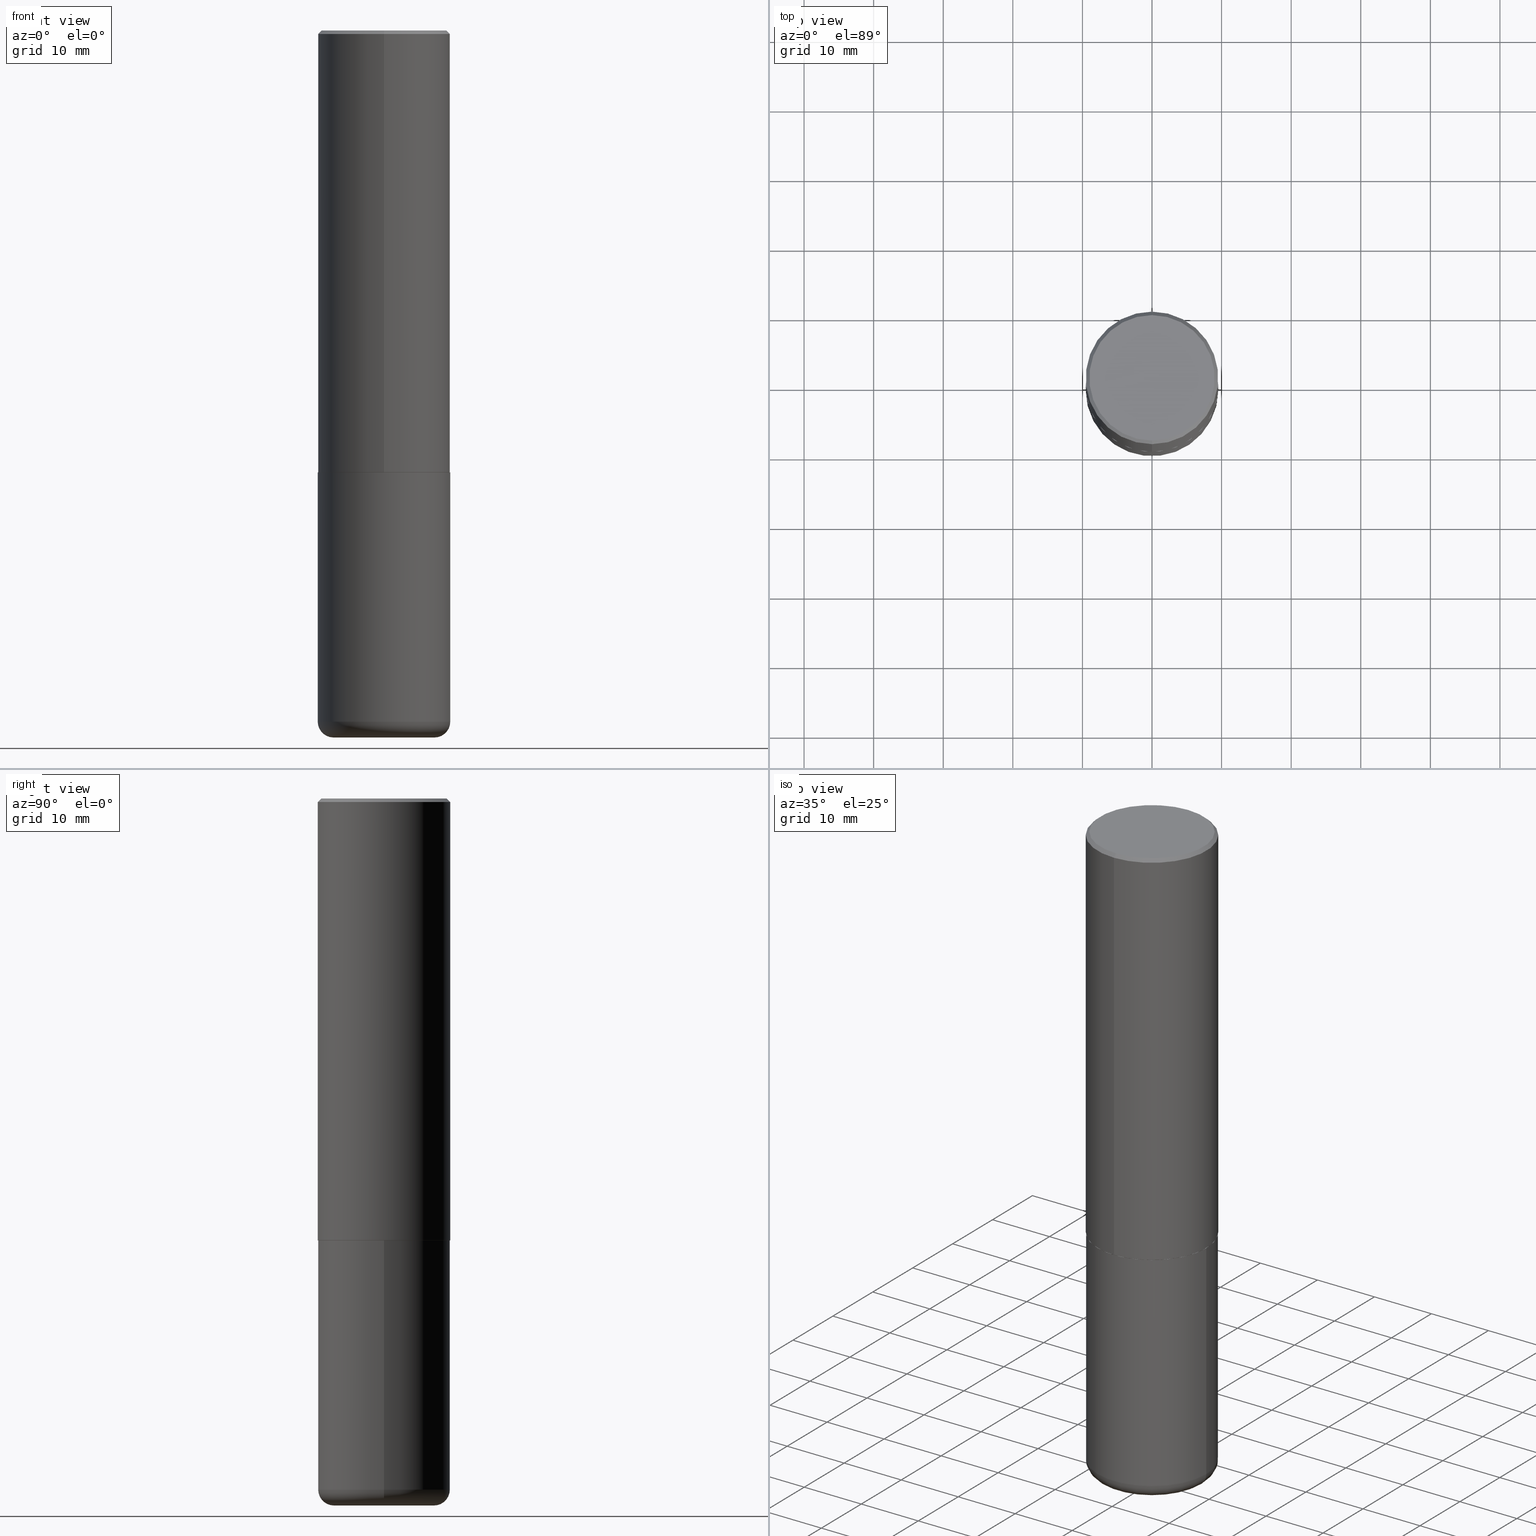
[diagram: canonical four-view strip — front | top / right | iso, engineering-drawing reading convention]
A machine part, canonical four-view strip (front | top / right | iso — engineering-drawing reading convention). The complete STEP part file that produces these views, byte-faithful:
ISO-10303-21;
HEADER;
FILE_DESCRIPTION (( 'STEP AP203' ),
    '1' );
FILE_NAME ('38297.STEP',
    '2024-03-02T21:24:46',
    ( '' ),
    ( '' ),
    'SwSTEP 2.0',
    'SolidWorks 2023',
    '' );
FILE_SCHEMA (( 'CONFIG_CONTROL_DESIGN' ));
ENDSEC;

DATA;
#1 = CARTESIAN_POINT ( 'NONE',  ( 0.000000000000000000, 0.000000000000000000, 0.000000000000000000 ) ) ;
#2 = EDGE_LOOP ( 'NONE', ( #383, #307, #387, #229 ) ) ;
#3 = CALENDAR_DATE ( 2024, 2, 3 ) ;
#4 = DIRECTION ( 'NONE',  ( -2.445468806185136597E-29, 3.491481338843145583E-15, 1.000000000000000000 ) ) ;
#5 = DATE_AND_TIME ( #3, #412 ) ;
#6 = VERTEX_POINT ( 'NONE', #354 ) ;
#7 = APPLICATION_PROTOCOL_DEFINITION ( 'international standard', 'config_control_design', 1994, #225 ) ;
#8 = DIRECTION ( 'NONE',  ( -2.445468806185136877E-29, 3.491481338843145188E-15, 1.000000000000000000 ) ) ;
#9 = LOCAL_TIME ( 16, 24, 46.00000000000000000, #37 ) ;
#10 = CARTESIAN_POINT ( 'NONE',  ( 2.657429831742835431E-15, 0.3739999999999912839, -2.500000000000001332 ) ) ;
#11 = CARTESIAN_POINT ( 'NONE',  ( 6.113672015462840371E-29, -8.728703347107863365E-15, -2.499999999999999556 ) ) ;
#12 = DIRECTION ( 'NONE',  ( -6.982962677686266711E-15, -1.000000000000000000, 2.913971193241878794E-15 ) ) ;
#13 = EDGE_CURVE ( 'NONE', #327, #174, #374, .T. ) ;
#14 = LOCAL_TIME ( 16, 24, 46.00000000000000000, #256 ) ;
#15 = DIRECTION ( 'NONE',  ( 2.444465131706344694E-29, -3.492918657822378868E-15, -1.000000000000000000 ) ) ;
#16 = ORIENTED_EDGE ( 'NONE', *, *, #323, .T. ) ;
#17 = CARTESIAN_POINT ( 'NONE',  ( 0.3749999999999999445, -2.618611004132349622E-15, 1.828566290923475642E-29 ) ) ;
#18 = CARTESIAN_POINT ( 'NONE',  ( 0.2850000000000000311, -1.595606971851316740E-14, -4.000000000000000000 ) ) ;
#19 = CONICAL_SURFACE ( 'NONE', #60, 0.3750000000000000555, 0.7853981633974477239 ) ;
#20 = LOCAL_TIME ( 16, 24, 46.00000000000000000, #386 ) ;
#21 = FACE_OUTER_BOUND ( 'NONE', #2, .T. ) ;
#22 = DIRECTION ( 'NONE',  ( -2.445468806185136597E-29, 3.491481338843145583E-15, 1.000000000000000000 ) ) ;
#23 = ORIENTED_EDGE ( 'NONE', *, *, #394, .F. ) ;
#24 = ADVANCED_FACE ( 'NONE', ( #355 ), #27, .T. ) ;
#25 = VERTEX_POINT ( 'NONE', #66 ) ;
#26 = DIRECTION ( 'NONE',  ( -6.982962677686266711E-15, -1.000000000000000000, 3.492918657822378473E-15 ) ) ;
#27 = CONICAL_SURFACE ( 'NONE', #310, 0.3739999999999999991, 0.7853981633974141952 ) ;
#28 = EDGE_LOOP ( 'NONE', ( #416, #149, #164, #342 ) ) ;
#29 = CC_DESIGN_APPROVAL ( #140, ( #49 ) ) ;
#30 = PERSON_AND_ORGANIZATION_ROLE ( 'design_owner' ) ;
#31 = CARTESIAN_POINT ( 'NONE',  ( 9.781875224740546387E-29, -1.396592535537258233E-14, -4.000000000000000000 ) ) ;
#32 = DIRECTION ( 'NONE',  ( -2.444465131706345255E-29, 3.492918657822378473E-15, 1.000000000000000000 ) ) ;
#33 = PERSON_AND_ORGANIZATION_ROLE ( 'design_supplier' ) ;
#34 = ORIENTED_EDGE ( 'NONE', *, *, #72, .T. ) ;
#35 = VECTOR ( 'NONE', #89, 39.37007874015748854 ) ;
#36 = AXIS2_PLACEMENT_3D ( 'NONE', #98, #159, #282 ) ;
#37 = COORDINATED_UNIVERSAL_TIME_OFFSET ( 5, 0, .BEHIND. ) ;
#38 = CARTESIAN_POINT ( 'NONE',  ( -2.504081769186608216E-15, -0.3549999999999999267, 1.308792571606178433E-15 ) ) ;
#39 = PERSON_AND_ORGANIZATION_ROLE ( 'classification_officer' ) ;
#40 = CARTESIAN_POINT ( 'NONE',  ( 6.108718364134156127E-29, -8.728803725898123939E-15, -2.498999999999999666 ) ) ;
#41 = DIRECTION ( 'NONE',  ( 1.000000000000000000, -6.982962677686273810E-15, 0.000000000000000000 ) ) ;
#42 = VECTOR ( 'NONE', #271, 39.37007874015748143 ) ;
#43 = CC_DESIGN_APPROVAL ( #215, ( #185 ) ) ;
#44 = DIRECTION ( 'NONE',  ( -6.982962677686266711E-15, -1.000000000000000000, 2.921762560068730595E-15 ) ) ;
#45 = EDGE_CURVE ( 'NONE', #379, #97, #109, .T. ) ;
#46 = DIRECTION ( 'NONE',  ( -6.982962677686266711E-15, -1.000000000000000000, 2.921762560068730595E-15 ) ) ;
#47 = CARTESIAN_POINT ( 'NONE',  ( 4.888930263412711914E-31, -6.985837315644786578E-17, -0.02000000000000008715 ) ) ;
#48 = VECTOR ( 'NONE', #359, 39.37007874015748143 ) ;
#49 = SECURITY_CLASSIFICATION ( '', '', #227 ) ;
#50 = DIRECTION ( 'NONE',  ( 6.982962677686265922E-15, 1.000000000000000000, -3.494488891895536035E-15 ) ) ;
#51 = CARTESIAN_POINT ( 'NONE',  ( 0.000000000000000000, 0.000000000000000000, 0.000000000000000000 ) ) ;
#52 = CYLINDRICAL_SURFACE ( 'NONE', #217, 0.3750000000000001665 ) ;
#53 = AXIS2_PLACEMENT_3D ( 'NONE', #1, #99, #188 ) ;
#54 = ORIENTED_EDGE ( 'NONE', *, *, #252, .T. ) ;
#55 = DIRECTION ( 'NONE',  ( -2.444465131706345255E-29, 3.492918657822378473E-15, 1.000000000000000000 ) ) ;
#56 = ORIENTED_EDGE ( 'NONE', *, *, #93, .T. ) ;
#57 = DIRECTION ( 'NONE',  ( 6.982962677686265922E-15, 1.000000000000000000, -3.494488891895536035E-15 ) ) ;
#58 = EDGE_LOOP ( 'NONE', ( #216, #117, #180, #318 ) ) ;
#59 = DATE_AND_TIME ( #163, #393 ) ;
#60 = AXIS2_PLACEMENT_3D ( 'NONE', #82, #176, #57 ) ;
#61 = ORIENTED_EDGE ( 'NONE', *, *, #148, .F. ) ;
#62 = APPROVAL_PERSON_ORGANIZATION ( #380, #140, #378 ) ;
#63 = APPROVAL_ROLE ( '' ) ;
#64 = EDGE_CURVE ( 'NONE', #223, #389, #395, .T. ) ;
#65 = DIRECTION ( 'NONE',  ( -6.982962677686266711E-15, -1.000000000000000000, 2.913971193241878794E-15 ) ) ;
#66 = CARTESIAN_POINT ( 'NONE',  ( -2.611628041454602471E-15, -0.3740000000000087699, -2.499999999999999112 ) ) ;
#67 = PERSON_AND_ORGANIZATION_ROLE ( 'creator' ) ;
#68 = FACE_OUTER_BOUND ( 'NONE', #92, .T. ) ;
#69 = AXIS2_PLACEMENT_3D ( 'NONE', #356, #108, #199 ) ;
#70 = APPROVAL_STATUS ( 'not_yet_approved' ) ;
#71 = CYLINDRICAL_SURFACE ( 'NONE', #365, 0.3749999999999999445 ) ;
#72 = EDGE_CURVE ( 'NONE', #139, #213, #211, .T. ) ;
#73 = CARTESIAN_POINT ( 'NONE',  ( 6.111162829265863557E-29, -8.732296644555947170E-15, -2.500000000000000000 ) ) ;
#74 = DIRECTION ( 'NONE',  ( -1.000000000000000000, 7.105427357600996337E-15, 0.000000000000000000 ) ) ;
#75 = AXIS2_PLACEMENT_3D ( 'NONE', #214, #277, #368 ) ;
#76 = FACE_OUTER_BOUND ( 'NONE', #360, .T. ) ;
#77 = DIRECTION ( 'NONE',  ( 6.982962677686265922E-15, 1.000000000000000000, -3.492918657822378868E-15 ) ) ;
#78 = EDGE_CURVE ( 'NONE', #97, #379, #330, .T. ) ;
#79 = CARTESIAN_POINT ( 'NONE',  ( 0.3750000000000000555, -1.134731435124021180E-14, -2.499999999999999556 ) ) ;
#80 = CC_DESIGN_PERSON_AND_ORGANIZATION_ASSIGNMENT ( #319, #39, ( #49 ) ) ;
#81 = AXIS2_PLACEMENT_3D ( 'NONE', #47, #295, #50 ) ;
#82 = CARTESIAN_POINT ( 'NONE',  ( 4.888930263412711914E-31, -6.985837315644786578E-17, -0.02000000000000008715 ) ) ;
#83 = CARTESIAN_POINT ( 'NONE',  ( 2.664535259100376486E-15, 0.3750000000000001665, -1.309844496683392470E-15 ) ) ;
#84 = ORIENTED_EDGE ( 'NONE', *, *, #87, .T. ) ;
#85 = CC_DESIGN_SECURITY_CLASSIFICATION ( #49, ( #185 ) ) ;
#86 = AXIS2_PLACEMENT_3D ( 'NONE', #31, #129, #259 ) ;
#87 = EDGE_CURVE ( 'NONE', #147, #309, #137, .T. ) ;
#88 = ORIENTED_EDGE ( 'NONE', *, *, #315, .F. ) ;
#89 = DIRECTION ( 'NONE',  ( -4.937700262164378437E-15, -0.7071067811865208164, 0.7071067811865739960 ) ) ;
#90 = ORIENTED_EDGE ( 'NONE', *, *, #243, .F. ) ;
#91 = CALENDAR_DATE ( 2024, 2, 3 ) ;
#92 = EDGE_LOOP ( 'NONE', ( #61, #284, #54, #88 ) ) ;
#93 = EDGE_CURVE ( 'NONE', #213, #139, #144, .T. ) ;
#94 = APPROVAL_STATUS ( 'not_yet_approved' ) ;
#95 = TOROIDAL_SURFACE ( 'NONE', #279, 0.2850000000000000311, 0.08999999999999989952 ) ;
#96 = ORIENTED_EDGE ( 'NONE', *, *, #72, .F. ) ;
#97 = VERTEX_POINT ( 'NONE', #231 ) ;
#98 = CARTESIAN_POINT ( 'NONE',  ( 4.888930263412711914E-31, -6.985837315644786578E-17, -0.02000000000000008715 ) ) ;
#99 = DIRECTION ( 'NONE',  ( 0.000000000000000000, 0.000000000000000000, 1.000000000000000000 ) ) ;
#100 = ORIENTED_EDGE ( 'NONE', *, *, #160, .T. ) ;
#101 = ADVANCED_FACE ( 'NONE', ( #68 ), #71, .T. ) ;
#102 = CARTESIAN_POINT ( 'NONE',  ( -1.681949631662511627E-45, 2.403353262744440834E-31, 6.880644807923424831E-17 ) ) ;
#103 = CARTESIAN_POINT ( 'NONE',  ( -0.2850000000000000311, -1.162664523796041410E-14, -3.910000000000000142 ) ) ;
#104 = PLANE ( 'NONE',  #69 ) ;
#105 = FACE_OUTER_BOUND ( 'NONE', #369, .T. ) ;
#106 = ORIENTED_EDGE ( 'NONE', *, *, #45, .F. ) ;
#107 = LINE ( 'NONE', #396, #48 ) ;
#108 = DIRECTION ( 'NONE',  ( -2.444465131706344694E-29, 3.492918657822378868E-15, 1.000000000000000000 ) ) ;
#109 = CIRCLE ( 'NONE', #414, 0.2850000000000000311 ) ;
#110 =( LENGTH_UNIT ( ) NAMED_UNIT ( * ) SI_UNIT ( $, .METRE. ) );
#111 = FACE_OUTER_BOUND ( 'NONE', #338, .T. ) ;
#112 = ADVANCED_FACE ( 'NONE', ( #125 ), #328, .T. ) ;
#113 = CARTESIAN_POINT ( 'NONE',  ( 9.781875224740546387E-29, -1.396592535537258233E-14, -4.000000000000000000 ) ) ;
#114 = ORIENTED_EDGE ( 'NONE', *, *, #276, .F. ) ;
#115 = CONICAL_SURFACE ( 'NONE', #81, 0.3750000000000000555, 0.7853981633974477239 ) ;
#116 = CYLINDRICAL_SURFACE ( 'NONE', #392, 0.3749999999999999445 ) ;
#117 = ORIENTED_EDGE ( 'NONE', *, *, #78, .T. ) ;
#118 = CARTESIAN_POINT ( 'NONE',  ( 0.000000000000000000, 0.000000000000000000, 0.000000000000000000 ) ) ;
#119 = MANIFOLD_SOLID_BREP ( 'Body-Move/Copy2[2]', #183 ) ;
#120 = PERSON_AND_ORGANIZATION ( #207, #303 ) ;
#121 = ORIENTED_EDGE ( 'NONE', *, *, #45, .T. ) ;
#122 = APPROVAL_DATE_TIME ( #190, #140 ) ;
#123 = DIRECTION ( 'NONE',  ( -6.982962677686266711E-15, -1.000000000000000000, 2.921762560068730595E-15 ) ) ;
#124 = PERSON_AND_ORGANIZATION_ROLE ( 'creator' ) ;
#125 = FACE_OUTER_BOUND ( 'NONE', #209, .T. ) ;
#126 = PRODUCT_RELATED_PRODUCT_CATEGORY ( 'detail', '', ( #221 ) ) ;
#127 = DIRECTION ( 'NONE',  ( -2.444465131706345255E-29, 3.492918657822378473E-15, 1.000000000000000000 ) ) ;
#128 = APPROVAL_DATE_TIME ( #161, #215 ) ;
#129 = DIRECTION ( 'NONE',  ( -2.445468806185136597E-29, 3.491481338843145583E-15, 1.000000000000000000 ) ) ;
#130 = AXIS2_PLACEMENT_3D ( 'NONE', #73, #32, #123 ) ;
#131 = LINE ( 'NONE', #17, #322 ) ;
#132 = CC_DESIGN_PERSON_AND_ORGANIZATION_ASSIGNMENT ( #120, #33, ( #185 ) ) ;
#133 = PLANE ( 'NONE',  #245 ) ;
#134 = DIRECTION ( 'NONE',  ( 1.000000000000000000, -6.982962677686264344E-15, 0.000000000000000000 ) ) ;
#135 = CIRCLE ( 'NONE', #382, 0.3739999999999999991 ) ;
#136 = EDGE_LOOP ( 'NONE', ( #275, #288 ) ) ;
#137 = CIRCLE ( 'NONE', #204, 0.3549999999999999267 ) ;
#138 = FACE_OUTER_BOUND ( 'NONE', #58, .T. ) ;
#139 = VERTEX_POINT ( 'NONE', #193 ) ;
#140 = APPROVAL ( #94, 'UNSPECIFIED' ) ;
#141 = CARTESIAN_POINT ( 'NONE',  ( 0.2850000000000000311, -1.564183639801728729E-14, -3.910000000000000142 ) ) ;
#142 = CARTESIAN_POINT ( 'NONE',  ( -2.611628041454602471E-15, -0.3740000000000087699, -2.499999999999999112 ) ) ;
#143 = CIRCLE ( 'NONE', #150, 0.08999999999999992728 ) ;
#144 = CIRCLE ( 'NONE', #187, 0.3750000000000000555 ) ;
#145 = CC_DESIGN_PERSON_AND_ORGANIZATION_ASSIGNMENT ( #186, #67, ( #300 ) ) ;
#146 = DIRECTION ( 'NONE',  ( 1.000000000000000000, -6.982962677686263555E-15, 0.000000000000000000 ) ) ;
#147 = VERTEX_POINT ( 'NONE', #38 ) ;
#148 = EDGE_CURVE ( 'NONE', #6, #389, #195, .T. ) ;
#149 = ORIENTED_EDGE ( 'NONE', *, *, #350, .T. ) ;
#150 = AXIS2_PLACEMENT_3D ( 'NONE', #141, #364, #41 ) ;
#151 = DIRECTION ( 'NONE',  ( -2.445468806185136597E-29, 3.491481338843145583E-15, 1.000000000000000000 ) ) ;
#152 = EDGE_CURVE ( 'NONE', #309, #139, #107, .T. ) ;
#153 = ORIENTED_EDGE ( 'NONE', *, *, #152, .T. ) ;
#154 = APPROVAL_DATE_TIME ( #5, #398 ) ;
#155 = DIRECTION ( 'NONE',  ( 1.000000000000000000, -6.982962677686264344E-15, 0.000000000000000000 ) ) ;
#156 = DIRECTION ( 'NONE',  ( -2.444465131706345255E-29, 3.492918657822378473E-15, 1.000000000000000000 ) ) ;
#157 = PERSON_AND_ORGANIZATION ( #207, #303 ) ;
#158 = AXIS2_PLACEMENT_3D ( 'NONE', #11, #234, #134 ) ;
#159 = DIRECTION ( 'NONE',  ( -2.444465131706345255E-29, 3.492918657822378473E-15, 1.000000000000000000 ) ) ;
#160 = EDGE_CURVE ( 'NONE', #174, #213, #391, .T. ) ;
#161 = DATE_AND_TIME ( #317, #20 ) ;
#162 = ORIENTED_EDGE ( 'NONE', *, *, #152, .F. ) ;
#163 = CALENDAR_DATE ( 2024, 2, 3 ) ;
#164 = ORIENTED_EDGE ( 'NONE', *, *, #93, .F. ) ;
#165 = ADVANCED_FACE ( 'NONE', ( #138 ), #95, .T. ) ;
#166 = VECTOR ( 'NONE', #203, 39.37007874015748143 ) ;
#167 = PLANE ( 'NONE',  #273 ) ;
#168 = AXIS2_PLACEMENT_3D ( 'NONE', #325, #329, #12 ) ;
#169 = LINE ( 'NONE', #326, #42 ) ;
#170 = CARTESIAN_POINT ( 'NONE',  ( -2.618611004132351200E-15, -0.3750000000000001665, 1.309844496683392470E-15 ) ) ;
#171 = ADVANCED_FACE ( 'NONE', ( #105 ), #133, .F. ) ;
#172 = CARTESIAN_POINT ( 'NONE',  ( 0.3749999999999999445, -1.627030303900904751E-14, -3.910000000000000142 ) ) ;
#173 = APPROVAL_PERSON_ORGANIZATION ( #353, #398, #348 ) ;
#174 = VERTEX_POINT ( 'NONE', #200 ) ;
#175 = CARTESIAN_POINT ( 'NONE',  ( 6.113672015462840371E-29, -8.728703347107863365E-15, -2.499999999999999556 ) ) ;
#176 = DIRECTION ( 'NONE',  ( 2.444465131706345255E-29, -3.492918657822378473E-15, -1.000000000000000000 ) ) ;
#177 = DIRECTION ( 'NONE',  ( -6.982962677686265922E-15, -1.000000000000000000, 3.492918657822378079E-15 ) ) ;
#178 = ORIENTED_EDGE ( 'NONE', *, *, #263, .T. ) ;
#179 = APPLICATION_CONTEXT ( 'configuration controlled 3d designs of mechanical parts and assemblies' ) ;
#180 = ORIENTED_EDGE ( 'NONE', *, *, #265, .T. ) ;
#181 = PRODUCT_DEFINITION_SHAPE ( 'NONE', 'NONE',  #300 ) ;
#182 = FACE_OUTER_BOUND ( 'NONE', #28, .T. ) ;
#183 = CLOSED_SHELL ( 'NONE', ( #112, #411, #222, #377, #333, #24, #230, #171 ) ) ;
#184 = CIRCLE ( 'NONE', #239, 0.3549999999999999267 ) ;
#185 = PRODUCT_DEFINITION_FORMATION_WITH_SPECIFIED_SOURCE ( 'ANY', '', #221, .NOT_KNOWN. ) ;
#186 = PERSON_AND_ORGANIZATION ( #207, #303 ) ;
#187 = AXIS2_PLACEMENT_3D ( 'NONE', #381, #349, #220 ) ;
#188 = DIRECTION ( 'NONE',  ( 1.000000000000000000, 0.000000000000000000, 0.000000000000000000 ) ) ;
#189 = DIRECTION ( 'NONE',  ( 1.000000000000000000, -6.982962677686266711E-15, 4.876176775795935793E-29 ) ) ;
#190 = DATE_AND_TIME ( #91, #14 ) ;
#191 = DIRECTION ( 'NONE',  ( -2.445468806185136597E-29, 3.491481338843145583E-15, 1.000000000000000000 ) ) ;
#192 = PERSON_AND_ORGANIZATION ( #207, #303 ) ;
#193 = CARTESIAN_POINT ( 'NONE',  ( 2.618611004132350411E-15, 0.3749999999999999445, -0.02000000000000139513 ) ) ;
#194 = PERSON_AND_ORGANIZATION ( #207, #303 ) ;
#195 = LINE ( 'NONE', #261, #293 ) ;
#196 = DIRECTION ( 'NONE',  ( -2.444465131706345255E-29, 3.492918657822378473E-15, 1.000000000000000000 ) ) ;
#197 = AXIS2_PLACEMENT_3D ( 'NONE', #415, #22, #370 ) ;
#198 = CARTESIAN_POINT ( 'NONE',  ( 6.111162829265863557E-29, -8.732296644555947170E-15, -2.500000000000000000 ) ) ;
#199 = DIRECTION ( 'NONE',  ( -6.982962677686265922E-15, -1.000000000000000000, 3.492918657822378868E-15 ) ) ;
#200 = CARTESIAN_POINT ( 'NONE',  ( -2.618611004132290852E-15, -0.3750000000000090483, -2.498999999999998778 ) ) ;
#201 = CC_DESIGN_DATE_AND_TIME_ASSIGNMENT ( #59, #286, ( #49 ) ) ;
#202 = ORIENTED_EDGE ( 'NONE', *, *, #362, .F. ) ;
#203 = DIRECTION ( 'NONE',  ( -2.444465131706345255E-29, 3.492918657822378868E-15, 1.000000000000000000 ) ) ;
#204 = AXIS2_PLACEMENT_3D ( 'NONE', #102, #418, #287 ) ;
#205 = PLANE ( 'NONE',  #210 ) ;
#206 = EDGE_CURVE ( 'NONE', #147, #213, #169, .T. ) ;
#207 = PERSON ( 'UNSPECIFIED', 'UNSPECIFIED', 'UNSPECIFIED', ('UNSPECIFIED'), ('UNSPECIFIED'), ('UNSPECIFIED') ) ;
#208 =( CONVERSION_BASED_UNIT ( 'INCH', #308 ) LENGTH_UNIT ( ) NAMED_UNIT ( #408 ) );
#209 = EDGE_LOOP ( 'NONE', ( #178, #409, #90, #23 ) ) ;
#210 = AXIS2_PLACEMENT_3D ( 'NONE', #113, #337, #274 ) ;
#211 = CIRCLE ( 'NONE', #36, 0.3750000000000000555 ) ;
#212 = FACE_OUTER_BOUND ( 'NONE', #244, .T. ) ;
#213 = VERTEX_POINT ( 'NONE', #399 ) ;
#214 = CARTESIAN_POINT ( 'NONE',  ( 9.561783032183883600E-29, -1.365169203487670064E-14, -3.910000000000000142 ) ) ;
#215 = APPROVAL ( #218, 'UNSPECIFIED' ) ;
#216 = ORIENTED_EDGE ( 'NONE', *, *, #296, .F. ) ;
#217 = AXIS2_PLACEMENT_3D ( 'NONE', #51, #410, #26 ) ;
#218 = APPROVAL_STATUS ( 'not_yet_approved' ) ;
#219 = CLOSED_SHELL ( 'NONE', ( #372, #335, #240, #101, #165, #384 ) ) ;
#220 = DIRECTION ( 'NONE',  ( -6.982962677686265922E-15, -1.000000000000000000, 3.494488891895536035E-15 ) ) ;
#221 = PRODUCT ( '38297', '38297', '', ( #258 ) ) ;
#222 = ADVANCED_FACE ( 'NONE', ( #76 ), #115, .T. ) ;
#223 = VERTEX_POINT ( 'NONE', #79 ) ;
#224 = VERTEX_POINT ( 'NONE', #172 ) ;
#225 = APPLICATION_CONTEXT ( 'configuration controlled 3d designs of mechanical parts and assemblies' ) ;
#226 = ADVANCED_BREP_SHAPE_REPRESENTATION ( '38297', ( #400, #119, #53 ), #253 ) ;
#227 = SECURITY_CLASSIFICATION_LEVEL ( 'unclassified' ) ;
#228 = CC_DESIGN_APPROVAL ( #398, ( #300 ) ) ;
#229 = ORIENTED_EDGE ( 'NONE', *, *, #252, .F. ) ;
#230 = ADVANCED_FACE ( 'NONE', ( #361 ), #104, .F. ) ;
#231 = CARTESIAN_POINT ( 'NONE',  ( -0.2850000000000000311, -1.146401766711631116E-14, -4.000000000000000000 ) ) ;
#232 = DIRECTION ( 'NONE',  ( 7.105427357601001859E-15, 1.000000000000000000, -3.491481338843145583E-15 ) ) ;
#233 = AXIS2_PLACEMENT_3D ( 'NONE', #238, #196, #46 ) ;
#234 = DIRECTION ( 'NONE',  ( -2.445468806185136597E-29, 3.491481338843145583E-15, 1.000000000000000000 ) ) ;
#235 = DIRECTION ( 'NONE',  ( -2.445468806185136597E-29, 3.491481338843145583E-15, 1.000000000000000000 ) ) ;
#236 = ORIENTED_EDGE ( 'NONE', *, *, #350, .F. ) ;
#237 = CARTESIAN_POINT ( 'NONE',  ( 2.478951750578623815E-15, 0.3549999999999999267, -1.205582899487326820E-15 ) ) ;
#238 = CARTESIAN_POINT ( 'NONE',  ( 6.111162829265863557E-29, -8.732296644555947170E-15, -2.500000000000000000 ) ) ;
#239 = AXIS2_PLACEMENT_3D ( 'NONE', #358, #332, #177 ) ;
#240 = ADVANCED_FACE ( 'NONE', ( #298 ), #167, .F. ) ;
#241 = ORIENTED_EDGE ( 'NONE', *, *, #13, .T. ) ;
#242 = CARTESIAN_POINT ( 'NONE',  ( 0.000000000000000000, 0.000000000000000000, 0.000000000000000000 ) ) ;
#243 = EDGE_CURVE ( 'NONE', #174, #327, #357, .T. ) ;
#244 = EDGE_LOOP ( 'NONE', ( #106, #340 ) ) ;
#245 = AXIS2_PLACEMENT_3D ( 'NONE', #237, #15, #77 ) ;
#246 = CARTESIAN_POINT ( 'NONE',  ( 2.664535259100408040E-15, 0.3749999999999915623, -2.499000000000000998 ) ) ;
#247 = EDGE_LOOP ( 'NONE', ( #257, #278 ) ) ;
#248 = FACE_OUTER_BOUND ( 'NONE', #413, .T. ) ;
#249 = VERTEX_POINT ( 'NONE', #301 ) ;
#250 = COORDINATED_UNIVERSAL_TIME_OFFSET ( 5, 0, .BEHIND. ) ;
#251 = CARTESIAN_POINT ( 'NONE',  ( 6.111162829265863557E-29, -8.732296644555947170E-15, -2.500000000000000000 ) ) ;
#252 = EDGE_CURVE ( 'NONE', #224, #223, #131, .T. ) ;
#253 =( GEOMETRIC_REPRESENTATION_CONTEXT ( 3 ) GLOBAL_UNCERTAINTY_ASSIGNED_CONTEXT ( ( #406 ) ) GLOBAL_UNIT_ASSIGNED_CONTEXT ( ( #208, #334, #304 ) ) REPRESENTATION_CONTEXT ( 'NONE', 'WORKASPACE' ) );
#254 = APPLICATION_PROTOCOL_DEFINITION ( 'international standard', 'config_control_design', 1994, #179 ) ;
#255 = ORIENTED_EDGE ( 'NONE', *, *, #323, .F. ) ;
#256 = COORDINATED_UNIVERSAL_TIME_OFFSET ( 5, 0, .BEHIND. ) ;
#257 = ORIENTED_EDGE ( 'NONE', *, *, #64, .T. ) ;
#258 = MECHANICAL_CONTEXT ( 'NONE', #179, 'mechanical' ) ;
#259 = DIRECTION ( 'NONE',  ( 1.000000000000000000, -6.982962677686266711E-15, 0.000000000000000000 ) ) ;
#260 = CIRCLE ( 'NONE', #197, 0.3749999999999999445 ) ;
#261 = CARTESIAN_POINT ( 'NONE',  ( -0.3749999999999999445, 2.664535259100375303E-15, -1.844600658845589318E-29 ) ) ;
#262 = DIRECTION ( 'NONE',  ( 5.024295867787889629E-15, 0.7071067811865257013, 0.7071067811865691111 ) ) ;
#263 = EDGE_CURVE ( 'NONE', #25, #249, #402, .T. ) ;
#264 = CARTESIAN_POINT ( 'NONE',  ( 2.548781377355487113E-15, 0.3549999999999999267, -1.171179675447709813E-15 ) ) ;
#265 = EDGE_CURVE ( 'NONE', #379, #224, #143, .T. ) ;
#266 = VECTOR ( 'NONE', #366, 39.37007874015748143 ) ;
#267 = CARTESIAN_POINT ( 'NONE',  ( 9.561783032183883600E-29, -1.365169203487670064E-14, -3.910000000000000142 ) ) ;
#268 = ORIENTED_EDGE ( 'NONE', *, *, #394, .T. ) ;
#269 = DIRECTION ( 'NONE',  ( 1.000000000000000000, -6.982962677686263555E-15, 4.883557194083111219E-29 ) ) ;
#270 = ORIENTED_EDGE ( 'NONE', *, *, #13, .F. ) ;
#271 = DIRECTION ( 'NONE',  ( -4.851104656540961119E-15, -0.7071067811865495711, -0.7071067811865454633 ) ) ;
#272 = CARTESIAN_POINT ( 'NONE',  ( 9.561783032183883600E-29, -1.365169203487670064E-14, -3.910000000000000142 ) ) ;
#273 = AXIS2_PLACEMENT_3D ( 'NONE', #175, #390, #401 ) ;
#274 = DIRECTION ( 'NONE',  ( -1.000000000000000000, 6.982962677686265922E-15, -4.876176775795935793E-29 ) ) ;
#275 = ORIENTED_EDGE ( 'NONE', *, *, #263, .F. ) ;
#276 = EDGE_CURVE ( 'NONE', #249, #327, #292, .T. ) ;
#277 = DIRECTION ( 'NONE',  ( -2.445468806185136597E-29, 3.491481338843145583E-15, 1.000000000000000000 ) ) ;
#278 = ORIENTED_EDGE ( 'NONE', *, *, #315, .T. ) ;
#279 = AXIS2_PLACEMENT_3D ( 'NONE', #267, #235, #269 ) ;
#280 = FACE_OUTER_BOUND ( 'NONE', #320, .T. ) ;
#281 = CALENDAR_DATE ( 2024, 2, 3 ) ;
#282 = DIRECTION ( 'NONE',  ( -6.982962677686265922E-15, -1.000000000000000000, 3.494488891895536035E-15 ) ) ;
#283 = CC_DESIGN_DATE_AND_TIME_ASSIGNMENT ( #417, #313, ( #300 ) ) ;
#284 = ORIENTED_EDGE ( 'NONE', *, *, #367, .T. ) ;
#285 = CIRCLE ( 'NONE', #158, 0.3750000000000000555 ) ;
#286 = DATE_TIME_ROLE ( 'classification_date' ) ;
#287 = DIRECTION ( 'NONE',  ( -6.982962677686265922E-15, -1.000000000000000000, 3.492918657822378079E-15 ) ) ;
#288 = ORIENTED_EDGE ( 'NONE', *, *, #306, .F. ) ;
#289 = COORDINATED_UNIVERSAL_TIME_OFFSET ( 5, 0, .BEHIND. ) ;
#290 = DIRECTION ( 'NONE',  ( -6.982962677686266711E-15, -1.000000000000000000, 2.921762560068730595E-15 ) ) ;
#291 = TOROIDAL_SURFACE ( 'NONE', #75, 0.2850000000000000311, 0.08999999999999989952 ) ;
#292 = LINE ( 'NONE', #10, #351 ) ;
#293 = VECTOR ( 'NONE', #8, 39.37007874015748143 ) ;
#294 = CC_DESIGN_PERSON_AND_ORGANIZATION_ASSIGNMENT ( #194, #124, ( #185 ) ) ;
#295 = DIRECTION ( 'NONE',  ( 2.444465131706345255E-29, -3.492918657822378473E-15, -1.000000000000000000 ) ) ;
#296 = EDGE_CURVE ( 'NONE', #97, #6, #388, .T. ) ;
#297 = AXIS2_PLACEMENT_3D ( 'NONE', #272, #151, #146 ) ;
#298 = FACE_OUTER_BOUND ( 'NONE', #247, .T. ) ;
#299 = ORIENTED_EDGE ( 'NONE', *, *, #306, .T. ) ;
#300 = PRODUCT_DEFINITION ( 'UNKNOWN', '', #185, #346 ) ;
#301 = CARTESIAN_POINT ( 'NONE',  ( 2.660982545421636724E-15, 0.3739999999999912839, -2.500000000000001332 ) ) ;
#302 = LINE ( 'NONE', #142, #35 ) ;
#303 = ORGANIZATION ( 'UNSPECIFIED', 'UNSPECIFIED', '' ) ;
#304 =( NAMED_UNIT ( * ) SI_UNIT ( $, .STERADIAN. ) SOLID_ANGLE_UNIT ( ) );
#305 = ORIENTED_EDGE ( 'NONE', *, *, #206, .F. ) ;
#306 = EDGE_CURVE ( 'NONE', #249, #25, #135, .T. ) ;
#307 = ORIENTED_EDGE ( 'NONE', *, *, #148, .T. ) ;
#308 = LENGTH_MEASURE_WITH_UNIT ( LENGTH_MEASURE( 0.02539999999999999897 ), #110 );
#309 = VERTEX_POINT ( 'NONE', #264 ) ;
#310 = AXIS2_PLACEMENT_3D ( 'NONE', #251, #127, #290 ) ;
#311 = CARTESIAN_POINT ( 'NONE',  ( 9.781875224740546387E-29, -1.396592535537258233E-14, -4.000000000000000000 ) ) ;
#312 = DIRECTION ( 'NONE',  ( 1.000000000000000000, -6.982962677686266711E-15, 0.000000000000000000 ) ) ;
#313 = DATE_TIME_ROLE ( 'creation_date' ) ;
#314 = DIRECTION ( 'NONE',  ( -2.445468806185136597E-29, 3.491481338843145583E-15, 1.000000000000000000 ) ) ;
#315 = EDGE_CURVE ( 'NONE', #389, #223, #285, .T. ) ;
#316 = AXIS2_PLACEMENT_3D ( 'NONE', #103, #232, #74 ) ;
#317 = CALENDAR_DATE ( 2024, 2, 3 ) ;
#318 = ORIENTED_EDGE ( 'NONE', *, *, #367, .F. ) ;
#319 = PERSON_AND_ORGANIZATION ( #207, #303 ) ;
#320 = EDGE_LOOP ( 'NONE', ( #121, #405, #202, #376 ) ) ;
#321 = DIRECTION ( 'NONE',  ( -2.445468806185136877E-29, 3.491481338843145188E-15, 1.000000000000000000 ) ) ;
#322 = VECTOR ( 'NONE', #321, 39.37007874015748143 ) ;
#323 = EDGE_CURVE ( 'NONE', #309, #147, #184, .T. ) ;
#324 = DIRECTION ( 'NONE',  ( -2.444465131706345255E-29, 3.492918657822378473E-15, 1.000000000000000000 ) ) ;
#325 = CARTESIAN_POINT ( 'NONE',  ( 6.108718364134156127E-29, -8.728803725898123939E-15, -2.498999999999999666 ) ) ;
#326 = CARTESIAN_POINT ( 'NONE',  ( -2.572686749164323547E-15, -0.3750000000000001110, -0.01999999999999877570 ) ) ;
#327 = VERTEX_POINT ( 'NONE', #246 ) ;
#328 = CONICAL_SURFACE ( 'NONE', #130, 0.3739999999999999991, 0.7853981633974141952 ) ;
#329 = DIRECTION ( 'NONE',  ( -2.444465131706345255E-29, 3.492918657822378473E-15, 1.000000000000000000 ) ) ;
#330 = CIRCLE ( 'NONE', #86, 0.2850000000000000311 ) ;
#331 = CARTESIAN_POINT ( 'NONE',  ( -0.3750000000000000555, -8.525662431891907096E-15, -2.499999999999999556 ) ) ;
#332 = DIRECTION ( 'NONE',  ( -2.444465131706345255E-29, 3.492918657822378473E-15, 1.000000000000000000 ) ) ;
#333 = ADVANCED_FACE ( 'NONE', ( #111 ), #52, .T. ) ;
#334 =( NAMED_UNIT ( * ) PLANE_ANGLE_UNIT ( ) SI_UNIT ( $, .RADIAN. ) );
#335 = ADVANCED_FACE ( 'NONE', ( #280 ), #291, .T. ) ;
#336 = AXIS2_PLACEMENT_3D ( 'NONE', #40, #156, #65 ) ;
#337 = DIRECTION ( 'NONE',  ( 2.438088387897960049E-29, -3.491481338843145188E-15, -1.000000000000000000 ) ) ;
#338 = EDGE_LOOP ( 'NONE', ( #236, #241, #100, #96 ) ) ;
#339 = DIRECTION ( 'NONE',  ( -2.445468806185136597E-29, 3.491481338843145583E-15, 1.000000000000000000 ) ) ;
#340 = ORIENTED_EDGE ( 'NONE', *, *, #78, .F. ) ;
#341 = CC_DESIGN_PERSON_AND_ORGANIZATION_ASSIGNMENT ( #157, #30, ( #221 ) ) ;
#342 = ORIENTED_EDGE ( 'NONE', *, *, #160, .F. ) ;
#343 = AXIS2_PLACEMENT_3D ( 'NONE', #385, #314, #155 ) ;
#344 = SHAPE_DEFINITION_REPRESENTATION ( #181, #226 ) ;
#345 = CARTESIAN_POINT ( 'NONE',  ( 0.000000000000000000, 0.000000000000000000, 0.000000000000000000 ) ) ;
#346 = DESIGN_CONTEXT ( 'detailed design', #225, 'design' ) ;
#347 = ORIENTED_EDGE ( 'NONE', *, *, #206, .T. ) ;
#348 = APPROVAL_ROLE ( '' ) ;
#349 = DIRECTION ( 'NONE',  ( -2.444465131706345255E-29, 3.492918657822378473E-15, 1.000000000000000000 ) ) ;
#350 = EDGE_CURVE ( 'NONE', #327, #139, #407, .T. ) ;
#351 = VECTOR ( 'NONE', #262, 39.37007874015748854 ) ;
#352 = APPROVAL_PERSON_ORGANIZATION ( #192, #215, #63 ) ;
#353 = PERSON_AND_ORGANIZATION ( #207, #303 ) ;
#354 = CARTESIAN_POINT ( 'NONE',  ( -0.3749999999999999445, -1.098715677577632652E-14, -3.910000000000000142 ) ) ;
#355 = FACE_OUTER_BOUND ( 'NONE', #397, .T. ) ;
#356 = CARTESIAN_POINT ( 'NONE',  ( 6.111162829265863557E-29, -8.732296644555947170E-15, -2.500000000000000000 ) ) ;
#357 = CIRCLE ( 'NONE', #168, 0.3750000000000002776 ) ;
#358 = CARTESIAN_POINT ( 'NONE',  ( -1.681949631662511627E-45, 2.403353262744440834E-31, 6.880644807923424831E-17 ) ) ;
#359 = DIRECTION ( 'NONE',  ( 4.937700262164544887E-15, 0.7071067811865446862, -0.7071067811865503483 ) ) ;
#360 = EDGE_LOOP ( 'NONE', ( #373, #347, #56, #162 ) ) ;
#361 = FACE_OUTER_BOUND ( 'NONE', #136, .T. ) ;
#362 = EDGE_CURVE ( 'NONE', #224, #6, #363, .T. ) ;
#363 = CIRCLE ( 'NONE', #297, 0.3749999999999999445 ) ;
#364 = DIRECTION ( 'NONE',  ( -6.982962677686266711E-15, -1.000000000000000000, 3.491481338843145583E-15 ) ) ;
#365 = AXIS2_PLACEMENT_3D ( 'NONE', #345, #4, #189 ) ;
#366 = DIRECTION ( 'NONE',  ( -2.444465131706345255E-29, 3.492918657822378868E-15, 1.000000000000000000 ) ) ;
#367 = EDGE_CURVE ( 'NONE', #6, #224, #260, .T. ) ;
#368 = DIRECTION ( 'NONE',  ( 1.000000000000000000, -6.982962677686263555E-15, 4.883557194083111219E-29 ) ) ;
#369 = EDGE_LOOP ( 'NONE', ( #16, #84 ) ) ;
#370 = DIRECTION ( 'NONE',  ( 1.000000000000000000, -6.982962677686263555E-15, 0.000000000000000000 ) ) ;
#371 = AXIS2_PLACEMENT_3D ( 'NONE', #242, #55, #404 ) ;
#372 = ADVANCED_FACE ( 'NONE', ( #21 ), #116, .T. ) ;
#373 = ORIENTED_EDGE ( 'NONE', *, *, #87, .F. ) ;
#374 = CIRCLE ( 'NONE', #336, 0.3750000000000002776 ) ;
#375 = DIRECTION ( 'NONE',  ( 1.000000000000000000, -6.982962677686266711E-15, 4.876176775795935793E-29 ) ) ;
#376 = ORIENTED_EDGE ( 'NONE', *, *, #265, .F. ) ;
#377 = ADVANCED_FACE ( 'NONE', ( #248 ), #19, .T. ) ;
#378 = APPROVAL_ROLE ( '' ) ;
#379 = VERTEX_POINT ( 'NONE', #18 ) ;
#380 = PERSON_AND_ORGANIZATION ( #207, #303 ) ;
#381 = CARTESIAN_POINT ( 'NONE',  ( 4.888930263412711914E-31, -6.985837315644786578E-17, -0.02000000000000008715 ) ) ;
#382 = AXIS2_PLACEMENT_3D ( 'NONE', #198, #324, #44 ) ;
#383 = ORIENTED_EDGE ( 'NONE', *, *, #362, .T. ) ;
#384 = ADVANCED_FACE ( 'NONE', ( #212 ), #205, .T. ) ;
#385 = CARTESIAN_POINT ( 'NONE',  ( 6.113672015462840371E-29, -8.728703347107863365E-15, -2.499999999999999556 ) ) ;
#386 = COORDINATED_UNIVERSAL_TIME_OFFSET ( 5, 0, .BEHIND. ) ;
#387 = ORIENTED_EDGE ( 'NONE', *, *, #64, .F. ) ;
#388 = CIRCLE ( 'NONE', #316, 0.08999999999999992728 ) ;
#389 = VERTEX_POINT ( 'NONE', #331 ) ;
#390 = DIRECTION ( 'NONE',  ( 2.438088387897960049E-29, -3.491481338843145188E-15, -1.000000000000000000 ) ) ;
#391 = LINE ( 'NONE', #170, #166 ) ;
#392 = AXIS2_PLACEMENT_3D ( 'NONE', #118, #339, #375 ) ;
#393 = LOCAL_TIME ( 16, 24, 46.00000000000000000, #250 ) ;
#394 = EDGE_CURVE ( 'NONE', #25, #174, #302, .T. ) ;
#395 = CIRCLE ( 'NONE', #343, 0.3750000000000000555 ) ;
#396 = CARTESIAN_POINT ( 'NONE',  ( 2.618611004132350411E-15, 0.3749999999999999445, -0.02000000000000139513 ) ) ;
#397 = EDGE_LOOP ( 'NONE', ( #114, #299, #268, #270 ) ) ;
#398 = APPROVAL ( #70, 'UNSPECIFIED' ) ;
#399 = CARTESIAN_POINT ( 'NONE',  ( -2.572686749164323547E-15, -0.3750000000000001110, -0.01999999999999877570 ) ) ;
#400 = MANIFOLD_SOLID_BREP ( 'Body-Move/Copy2[1]', #219 ) ;
#401 = DIRECTION ( 'NONE',  ( -1.000000000000000000, 6.982962677686265922E-15, -4.876176775795935793E-29 ) ) ;
#402 = CIRCLE ( 'NONE', #233, 0.3739999999999999991 ) ;
#403 = CYLINDRICAL_SURFACE ( 'NONE', #371, 0.3750000000000001665 ) ;
#404 = DIRECTION ( 'NONE',  ( -6.982962677686266711E-15, -1.000000000000000000, 3.492918657822378473E-15 ) ) ;
#405 = ORIENTED_EDGE ( 'NONE', *, *, #296, .T. ) ;
#406 = UNCERTAINTY_MEASURE_WITH_UNIT (LENGTH_MEASURE( 1.000000000000000082E-05 ), #208, 'distance_accuracy_value', 'NONE');
#407 = LINE ( 'NONE', #83, #266 ) ;
#408 = DIMENSIONAL_EXPONENTS ( 1.000000000000000000, 0.000000000000000000, 0.000000000000000000, 0.000000000000000000, 0.000000000000000000, 0.000000000000000000, 0.000000000000000000 ) ;
#409 = ORIENTED_EDGE ( 'NONE', *, *, #276, .T. ) ;
#410 = DIRECTION ( 'NONE',  ( -2.444465131706345255E-29, 3.492918657822378473E-15, 1.000000000000000000 ) ) ;
#411 = ADVANCED_FACE ( 'NONE', ( #182 ), #403, .T. ) ;
#412 = LOCAL_TIME ( 16, 24, 46.00000000000000000, #289 ) ;
#413 = EDGE_LOOP ( 'NONE', ( #305, #255, #153, #34 ) ) ;
#414 = AXIS2_PLACEMENT_3D ( 'NONE', #311, #191, #312 ) ;
#415 = CARTESIAN_POINT ( 'NONE',  ( 9.561783032183883600E-29, -1.365169203487670064E-14, -3.910000000000000142 ) ) ;
#416 = ORIENTED_EDGE ( 'NONE', *, *, #243, .T. ) ;
#417 = DATE_AND_TIME ( #281, #9 ) ;
#418 = DIRECTION ( 'NONE',  ( -2.444465131706345255E-29, 3.492918657822378473E-15, 1.000000000000000000 ) ) ;
ENDSEC;
END-ISO-10303-21;
